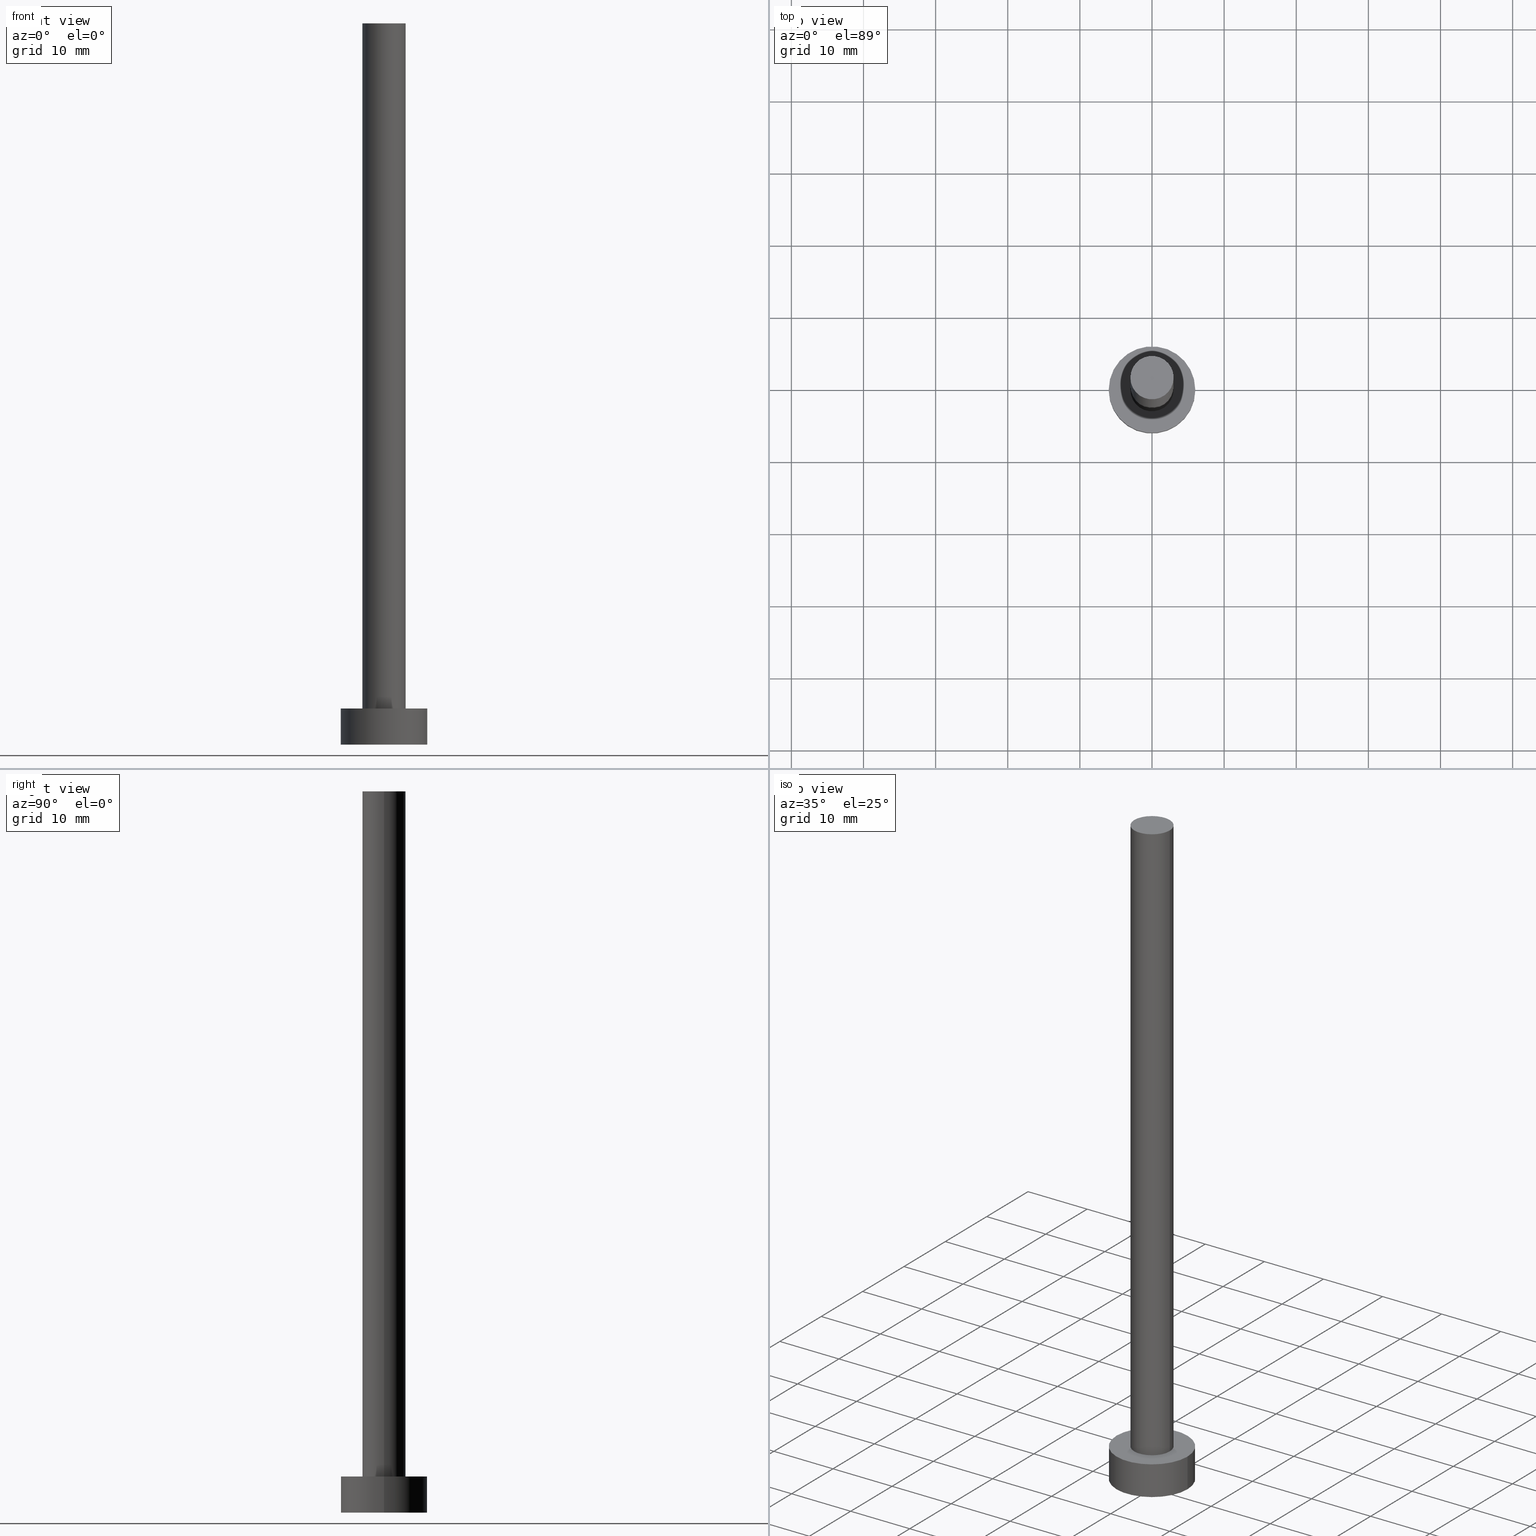
[diagram: canonical four-view strip — front | top / right | iso, engineering-drawing reading convention]
A machine part, canonical four-view strip (front | top / right | iso — engineering-drawing reading convention). The complete STEP part file that produces these views, byte-faithful:
ISO-10303-21;
HEADER;
FILE_DESCRIPTION (( 'STEP AP203' ),
    '1' );
FILE_NAME ('bd63.STEP',
    '2023-02-13T14:08:08',
    ( '' ),
    ( '' ),
    'SwSTEP 2.0',
    'SolidWorks 2019',
    '' );
FILE_SCHEMA (( 'CONFIG_CONTROL_DESIGN' ));
ENDSEC;

DATA;
#1 = APPLICATION_PROTOCOL_DEFINITION ( 'international standard', 'config_control_design', 1994, #52 ) ;
#2 = DIRECTION ( 'NONE',  ( 1.000000000000000000, 0.000000000000000000, 0.000000000000000000 ) ) ;
#3 = CIRCLE ( 'NONE', #38, 6.000000000000000888 ) ;
#4 = LOCAL_TIME ( 15, 8, 8.000000000000000000, #72 ) ;
#5 = DIRECTION ( 'NONE',  ( -0.000000000000000000, -0.000000000000000000, -1.000000000000000000 ) ) ;
#6 = APPROVAL_STATUS ( 'not_yet_approved' ) ;
#7 = DIRECTION ( 'NONE',  ( 1.000000000000000000, 0.000000000000000000, -0.000000000000000000 ) ) ;
#8 = ORIENTED_EDGE ( 'NONE', *, *, #140, .F. ) ;
#9 = LOCAL_TIME ( 15, 8, 8.000000000000000000, #210 ) ;
#10 = CALENDAR_DATE ( 2023, 13, 2 ) ;
#11 = CARTESIAN_POINT ( 'NONE',  ( 0.000000000000000000, 0.000000000000000000, 5.000000000000000000 ) ) ;
#12 = EDGE_LOOP ( 'NONE', ( #178, #18 ) ) ;
#13 = PERSON_AND_ORGANIZATION ( #130, #146 ) ;
#14 = ORIENTED_EDGE ( 'NONE', *, *, #104, .F. ) ;
#15 = ADVANCED_FACE ( 'NONE', ( #150, #46 ), #61, .T. ) ;
#16 = LOCAL_TIME ( 15, 8, 8.000000000000000000, #89 ) ;
#17 = CARTESIAN_POINT ( 'NONE',  ( -3.000000000000000444, 0.000000000000000000, 100.0000000000000000 ) ) ;
#18 = ORIENTED_EDGE ( 'NONE', *, *, #60, .F. ) ;
#19 = APPROVAL_DATE_TIME ( #254, #177 ) ;
#20 = CIRCLE ( 'NONE', #80, 6.000000000000000888 ) ;
#21 = EDGE_CURVE ( 'NONE', #166, #163, #65, .T. ) ;
#22 = ORIENTED_EDGE ( 'NONE', *, *, #176, .T. ) ;
#23 = DIRECTION ( 'NONE',  ( 1.000000000000000000, 0.000000000000000000, 0.000000000000000000 ) ) ;
#24 = DIRECTION ( 'NONE',  ( 0.000000000000000000, 0.000000000000000000, 1.000000000000000000 ) ) ;
#25 = APPROVAL ( #79, 'NEUR�EN�' ) ;
#26 = CARTESIAN_POINT ( 'NONE',  ( 0.000000000000000000, 0.000000000000000000, 100.0000000000000000 ) ) ;
#27 = FACE_OUTER_BOUND ( 'NONE', #242, .T. ) ;
#28 = CALENDAR_DATE ( 2023, 13, 2 ) ;
#29 = DIRECTION ( 'NONE',  ( 0.000000000000000000, 0.000000000000000000, 1.000000000000000000 ) ) ;
#30 = CARTESIAN_POINT ( 'NONE',  ( 0.000000000000000000, 0.000000000000000000, 100.0000000000000000 ) ) ;
#31 = AXIS2_PLACEMENT_3D ( 'NONE', #186, #135, #105 ) ;
#32 = ADVANCED_FACE ( 'NONE', ( #27 ), #63, .T. ) ;
#33 = APPROVAL_DATE_TIME ( #226, #25 ) ;
#34 = DIRECTION ( 'NONE',  ( -1.000000000000000000, 0.000000000000000000, 0.000000000000000000 ) ) ;
#35 = ORIENTED_EDGE ( 'NONE', *, *, #221, .T. ) ;
#36 = LINE ( 'NONE', #231, #243 ) ;
#37 = ORIENTED_EDGE ( 'NONE', *, *, #136, .T. ) ;
#38 = AXIS2_PLACEMENT_3D ( 'NONE', #227, #139, #85 ) ;
#39 = CC_DESIGN_APPROVAL ( #177, ( #249 ) ) ;
#40 = ADVANCED_BREP_SHAPE_REPRESENTATION ( 'bd63', ( #116, #171 ), #45 ) ;
#41 = ORIENTED_EDGE ( 'NONE', *, *, #218, .F. ) ;
#42 = SECURITY_CLASSIFICATION_LEVEL ( 'unclassified' ) ;
#43 = CC_DESIGN_PERSON_AND_ORGANIZATION_ASSIGNMENT ( #160, #125, ( #207 ) ) ;
#44 = ORIENTED_EDGE ( 'NONE', *, *, #203, .T. ) ;
#45 =( GEOMETRIC_REPRESENTATION_CONTEXT ( 3 ) GLOBAL_UNCERTAINTY_ASSIGNED_CONTEXT ( ( #71 ) ) GLOBAL_UNIT_ASSIGNED_CONTEXT ( ( #213, #121, #233 ) ) REPRESENTATION_CONTEXT ( 'NONE', 'WORKASPACE' ) );
#46 = FACE_OUTER_BOUND ( 'NONE', #238, .T. ) ;
#47 = CARTESIAN_POINT ( 'NONE',  ( 0.000000000000000000, 0.000000000000000000, 0.000000000000000000 ) ) ;
#48 = CARTESIAN_POINT ( 'NONE',  ( 6.000000000000000888, 7.347880794884120722E-16, 5.000000000000000000 ) ) ;
#49 = CARTESIAN_POINT ( 'NONE',  ( 3.000000000000000444, 3.673940397442060361E-16, 100.0000000000000000 ) ) ;
#50 = CIRCLE ( 'NONE', #144, 6.000000000000000888 ) ;
#51 = DIRECTION ( 'NONE',  ( 1.000000000000000000, 0.000000000000000000, 0.000000000000000000 ) ) ;
#52 = APPLICATION_CONTEXT ( 'configuration controlled 3d designs of mechanical parts and assemblies' ) ;
#53 = DIRECTION ( 'NONE',  ( -0.000000000000000000, -0.000000000000000000, -1.000000000000000000 ) ) ;
#54 = CARTESIAN_POINT ( 'NONE',  ( 0.000000000000000000, 0.000000000000000000, 0.000000000000000000 ) ) ;
#55 = COORDINATED_UNIVERSAL_TIME_OFFSET ( 1, 0, .AHEAD. ) ;
#56 = VERTEX_POINT ( 'NONE', #113 ) ;
#57 = CC_DESIGN_PERSON_AND_ORGANIZATION_ASSIGNMENT ( #199, #175, ( #249 ) ) ;
#58 = AXIS2_PLACEMENT_3D ( 'NONE', #102, #53, #34 ) ;
#59 = VERTEX_POINT ( 'NONE', #222 ) ;
#60 = EDGE_CURVE ( 'NONE', #56, #198, #50, .T. ) ;
#61 = PLANE ( 'NONE',  #169 ) ;
#62 = APPROVAL_ROLE ( '' ) ;
#63 = CYLINDRICAL_SURFACE ( 'NONE', #149, 6.000000000000000888 ) ;
#64 = CARTESIAN_POINT ( 'NONE',  ( 0.000000000000000000, 0.000000000000000000, 100.0000000000000000 ) ) ;
#65 = CIRCLE ( 'NONE', #235, 3.000000000000000444 ) ;
#66 = DIRECTION ( 'NONE',  ( -0.000000000000000000, -0.000000000000000000, -1.000000000000000000 ) ) ;
#67 = CIRCLE ( 'NONE', #97, 6.000000000000000888 ) ;
#68 = DIRECTION ( 'NONE',  ( 1.000000000000000000, 0.000000000000000000, 0.000000000000000000 ) ) ;
#69 = CYLINDRICAL_SURFACE ( 'NONE', #220, 6.000000000000000888 ) ;
#70 = ORIENTED_EDGE ( 'NONE', *, *, #21, .T. ) ;
#71 = UNCERTAINTY_MEASURE_WITH_UNIT (LENGTH_MEASURE( 1.000000000000000082E-05 ), #213, 'distance_accuracy_value', 'NONE');
#72 = COORDINATED_UNIVERSAL_TIME_OFFSET ( 1, 0, .AHEAD. ) ;
#73 = VECTOR ( 'NONE', #5, 1000.000000000000000 ) ;
#74 = ORIENTED_EDGE ( 'NONE', *, *, #60, .T. ) ;
#75 = ADVANCED_FACE ( 'NONE', ( #179 ), #206, .T. ) ;
#76 = EDGE_LOOP ( 'NONE', ( #14, #8, #239, #44 ) ) ;
#77 = ORIENTED_EDGE ( 'NONE', *, *, #176, .F. ) ;
#78 = AXIS2_PLACEMENT_3D ( 'NONE', #127, #24, #2 ) ;
#79 = APPROVAL_STATUS ( 'not_yet_approved' ) ;
#80 = AXIS2_PLACEMENT_3D ( 'NONE', #118, #192, #212 ) ;
#81 = VERTEX_POINT ( 'NONE', #204 ) ;
#82 = PERSON_AND_ORGANIZATION ( #130, #146 ) ;
#83 = LINE ( 'NONE', #155, #228 ) ;
#84 = APPROVAL_ROLE ( '' ) ;
#85 = DIRECTION ( 'NONE',  ( 1.000000000000000000, 0.000000000000000000, 0.000000000000000000 ) ) ;
#86 = VERTEX_POINT ( 'NONE', #241 ) ;
#87 = DATE_AND_TIME ( #10, #16 ) ;
#88 = CARTESIAN_POINT ( 'NONE',  ( -6.000000000000000888, 0.000000000000000000, 0.000000000000000000 ) ) ;
#89 = COORDINATED_UNIVERSAL_TIME_OFFSET ( 1, 0, .AHEAD. ) ;
#90 = EDGE_LOOP ( 'NONE', ( #187, #41 ) ) ;
#91 = CARTESIAN_POINT ( 'NONE',  ( 0.000000000000000000, 0.000000000000000000, 5.000000000000000000 ) ) ;
#92 = ORIENTED_EDGE ( 'NONE', *, *, #136, .F. ) ;
#93 = APPLICATION_PROTOCOL_DEFINITION ( 'international standard', 'config_control_design', 1994, #94 ) ;
#94 = APPLICATION_CONTEXT ( 'configuration controlled 3d designs of mechanical parts and assemblies' ) ;
#95 = AXIS2_PLACEMENT_3D ( 'NONE', #91, #142, #191 ) ;
#96 = EDGE_CURVE ( 'NONE', #103, #86, #182, .T. ) ;
#97 = AXIS2_PLACEMENT_3D ( 'NONE', #123, #156, #68 ) ;
#98 = APPROVAL_PERSON_ORGANIZATION ( #13, #100, #84 ) ;
#99 = CARTESIAN_POINT ( 'NONE',  ( -3.000000000000000444, 0.000000000000000000, 5.000000000000000000 ) ) ;
#100 = APPROVAL ( #6, 'NEUR�EN�' ) ;
#101 = PLANE ( 'NONE',  #31 ) ;
#102 = CARTESIAN_POINT ( 'NONE',  ( 0.000000000000000000, 0.000000000000000000, 100.0000000000000000 ) ) ;
#103 = VERTEX_POINT ( 'NONE', #99 ) ;
#104 = EDGE_CURVE ( 'NONE', #59, #56, #132, .T. ) ;
#105 = DIRECTION ( 'NONE',  ( 1.000000000000000000, 0.000000000000000000, -0.000000000000000000 ) ) ;
#106 = DIRECTION ( 'NONE',  ( -0.000000000000000000, -0.000000000000000000, -1.000000000000000000 ) ) ;
#107 = LOCAL_TIME ( 15, 8, 8.000000000000000000, #151 ) ;
#108 = ORIENTED_EDGE ( 'NONE', *, *, #111, .T. ) ;
#109 = PERSON_AND_ORGANIZATION ( #130, #146 ) ;
#110 = EDGE_LOOP ( 'NONE', ( #77, #35, #252, #185 ) ) ;
#111 = EDGE_CURVE ( 'NONE', #166, #103, #83, .T. ) ;
#112 = DIRECTION ( 'NONE',  ( -0.000000000000000000, -0.000000000000000000, -1.000000000000000000 ) ) ;
#113 = CARTESIAN_POINT ( 'NONE',  ( 6.000000000000000888, 7.347880794884120722E-16, 0.000000000000000000 ) ) ;
#114 = CC_DESIGN_PERSON_AND_ORGANIZATION_ASSIGNMENT ( #124, #170, ( #207 ) ) ;
#115 = DIRECTION ( 'NONE',  ( 0.000000000000000000, 0.000000000000000000, 1.000000000000000000 ) ) ;
#116 = MANIFOLD_SOLID_BREP ( 'P�idat vysunut�m3', #255 ) ;
#117 = LINE ( 'NONE', #211, #193 ) ;
#118 = CARTESIAN_POINT ( 'NONE',  ( 0.000000000000000000, 0.000000000000000000, 0.000000000000000000 ) ) ;
#119 = CIRCLE ( 'NONE', #128, 3.000000000000000444 ) ;
#120 = ADVANCED_FACE ( 'NONE', ( #184 ), #158, .F. ) ;
#121 =( NAMED_UNIT ( * ) PLANE_ANGLE_UNIT ( ) SI_UNIT ( $, .RADIAN. ) );
#122 = CALENDAR_DATE ( 2023, 13, 2 ) ;
#123 = CARTESIAN_POINT ( 'NONE',  ( 0.000000000000000000, 0.000000000000000000, 5.000000000000000000 ) ) ;
#124 = PERSON_AND_ORGANIZATION ( #130, #146 ) ;
#125 = PERSON_AND_ORGANIZATION_ROLE ( 'creator' ) ;
#126 = ORIENTED_EDGE ( 'NONE', *, *, #104, .T. ) ;
#127 = CARTESIAN_POINT ( 'NONE',  ( 0.000000000000000000, 0.000000000000000000, 5.000000000000000000 ) ) ;
#128 = AXIS2_PLACEMENT_3D ( 'NONE', #30, #248, #51 ) ;
#129 = DIRECTION ( 'NONE',  ( -0.000000000000000000, -0.000000000000000000, -1.000000000000000000 ) ) ;
#130 = PERSON ( 'NEUR�EN�', 'NEUR�EN�', 'NEUR�EN�', ('NEUR�EN�'), ('NEUR�EN�'), ('NEUR�EN�') ) ;
#131 = DIRECTION ( 'NONE',  ( 1.000000000000000000, 0.000000000000000000, 0.000000000000000000 ) ) ;
#132 = LINE ( 'NONE', #48, #73 ) ;
#133 = CC_DESIGN_APPROVAL ( #100, ( #207 ) ) ;
#134 = FACE_OUTER_BOUND ( 'NONE', #76, .T. ) ;
#135 = DIRECTION ( 'NONE',  ( 0.000000000000000000, 0.000000000000000000, 1.000000000000000000 ) ) ;
#136 = EDGE_CURVE ( 'NONE', #59, #81, #3, .T. ) ;
#137 = DIRECTION ( 'NONE',  ( -0.000000000000000000, -0.000000000000000000, -1.000000000000000000 ) ) ;
#138 = ORIENTED_EDGE ( 'NONE', *, *, #221, .F. ) ;
#139 = DIRECTION ( 'NONE',  ( 0.000000000000000000, 0.000000000000000000, 1.000000000000000000 ) ) ;
#140 = EDGE_CURVE ( 'NONE', #81, #59, #67, .T. ) ;
#141 = CC_DESIGN_SECURITY_CLASSIFICATION ( #249, ( #207 ) ) ;
#142 = DIRECTION ( 'NONE',  ( 0.000000000000000000, 0.000000000000000000, 1.000000000000000000 ) ) ;
#143 = PRODUCT_DEFINITION_SHAPE ( 'NONE', 'NONE',  #208 ) ;
#144 = AXIS2_PLACEMENT_3D ( 'NONE', #47, #115, #23 ) ;
#145 = DIRECTION ( 'NONE',  ( 1.000000000000000000, 0.000000000000000000, 0.000000000000000000 ) ) ;
#146 = ORGANIZATION ( 'NEUR�EN�', 'NEUR�EN�', '' ) ;
#147 = ADVANCED_FACE ( 'NONE', ( #247 ), #101, .T. ) ;
#148 = CARTESIAN_POINT ( 'NONE',  ( 0.000000000000000000, 0.000000000000000000, 5.000000000000000000 ) ) ;
#149 = AXIS2_PLACEMENT_3D ( 'NONE', #245, #66, #205 ) ;
#150 = FACE_BOUND ( 'NONE', #90, .T. ) ;
#151 = COORDINATED_UNIVERSAL_TIME_OFFSET ( 1, 0, .AHEAD. ) ;
#152 = DIRECTION ( 'NONE',  ( 0.000000000000000000, 0.000000000000000000, 1.000000000000000000 ) ) ;
#153 = ORIENTED_EDGE ( 'NONE', *, *, #167, .F. ) ;
#154 = PERSON_AND_ORGANIZATION_ROLE ( 'creator' ) ;
#155 = CARTESIAN_POINT ( 'NONE',  ( -3.000000000000000444, 0.000000000000000000, 100.0000000000000000 ) ) ;
#156 = DIRECTION ( 'NONE',  ( 0.000000000000000000, 0.000000000000000000, 1.000000000000000000 ) ) ;
#157 = APPROVAL_DATE_TIME ( #87, #100 ) ;
#158 = PLANE ( 'NONE',  #219 ) ;
#159 = ORIENTED_EDGE ( 'NONE', *, *, #96, .T. ) ;
#160 = PERSON_AND_ORGANIZATION ( #130, #146 ) ;
#161 = CC_DESIGN_DATE_AND_TIME_ASSIGNMENT ( #183, #190, ( #208 ) ) ;
#162 = CYLINDRICAL_SURFACE ( 'NONE', #58, 3.000000000000000444 ) ;
#163 = VERTEX_POINT ( 'NONE', #49 ) ;
#164 = APPROVAL_PERSON_ORGANIZATION ( #224, #25, #62 ) ;
#165 = FACE_OUTER_BOUND ( 'NONE', #110, .T. ) ;
#166 = VERTEX_POINT ( 'NONE', #17 ) ;
#167 = EDGE_CURVE ( 'NONE', #81, #198, #117, .T. ) ;
#168 = PERSON_AND_ORGANIZATION ( #130, #146 ) ;
#169 = AXIS2_PLACEMENT_3D ( 'NONE', #148, #181, #225 ) ;
#170 = PERSON_AND_ORGANIZATION_ROLE ( 'design_supplier' ) ;
#171 = AXIS2_PLACEMENT_3D ( 'NONE', #173, #217, #145 ) ;
#172 = DATE_TIME_ROLE ( 'classification_date' ) ;
#173 = CARTESIAN_POINT ( 'NONE',  ( 0.000000000000000000, 0.000000000000000000, 0.000000000000000000 ) ) ;
#174 = EDGE_LOOP ( 'NONE', ( #70, #22 ) ) ;
#175 = PERSON_AND_ORGANIZATION_ROLE ( 'classification_officer' ) ;
#176 = EDGE_CURVE ( 'NONE', #163, #166, #119, .T. ) ;
#177 = APPROVAL ( #251, 'NEUR�EN�' ) ;
#178 = ORIENTED_EDGE ( 'NONE', *, *, #203, .F. ) ;
#179 = FACE_OUTER_BOUND ( 'NONE', #189, .T. ) ;
#180 = ORIENTED_EDGE ( 'NONE', *, *, #140, .T. ) ;
#181 = DIRECTION ( 'NONE',  ( 0.000000000000000000, 0.000000000000000000, 1.000000000000000000 ) ) ;
#182 = CIRCLE ( 'NONE', #78, 3.000000000000000444 ) ;
#183 = DATE_AND_TIME ( #28, #9 ) ;
#184 = FACE_OUTER_BOUND ( 'NONE', #12, .T. ) ;
#185 = ORIENTED_EDGE ( 'NONE', *, *, #111, .F. ) ;
#186 = CARTESIAN_POINT ( 'NONE',  ( 0.000000000000000000, 0.000000000000000000, 100.0000000000000000 ) ) ;
#187 = ORIENTED_EDGE ( 'NONE', *, *, #96, .F. ) ;
#188 = ADVANCED_FACE ( 'NONE', ( #134 ), #69, .T. ) ;
#189 = EDGE_LOOP ( 'NONE', ( #138, #215, #108, #159 ) ) ;
#190 = DATE_TIME_ROLE ( 'creation_date' ) ;
#191 = DIRECTION ( 'NONE',  ( 1.000000000000000000, 0.000000000000000000, 0.000000000000000000 ) ) ;
#192 = DIRECTION ( 'NONE',  ( 0.000000000000000000, 0.000000000000000000, 1.000000000000000000 ) ) ;
#193 = VECTOR ( 'NONE', #137, 1000.000000000000000 ) ;
#194 = PRODUCT ( 'bd63', 'bd63', '', ( #196 ) ) ;
#195 = DESIGN_CONTEXT ( 'detailed design', #52, 'design' ) ;
#196 = MECHANICAL_CONTEXT ( 'NONE', #94, 'mechanical' ) ;
#197 = AXIS2_PLACEMENT_3D ( 'NONE', #26, #129, #209 ) ;
#198 = VERTEX_POINT ( 'NONE', #88 ) ;
#199 = PERSON_AND_ORGANIZATION ( #130, #146 ) ;
#200 = PERSON_AND_ORGANIZATION_ROLE ( 'design_owner' ) ;
#201 = APPROVAL_PERSON_ORGANIZATION ( #168, #177, #202 ) ;
#202 = APPROVAL_ROLE ( '' ) ;
#203 = EDGE_CURVE ( 'NONE', #198, #56, #20, .T. ) ;
#204 = CARTESIAN_POINT ( 'NONE',  ( -6.000000000000000888, 0.000000000000000000, 5.000000000000000000 ) ) ;
#205 = DIRECTION ( 'NONE',  ( -1.000000000000000000, 0.000000000000000000, 0.000000000000000000 ) ) ;
#206 = CYLINDRICAL_SURFACE ( 'NONE', #197, 3.000000000000000444 ) ;
#207 = PRODUCT_DEFINITION_FORMATION_WITH_SPECIFIED_SOURCE ( 'LIBOVOLN�', '', #194, .NOT_KNOWN. ) ;
#208 = PRODUCT_DEFINITION ( 'NEZN�M�', '', #207, #195 ) ;
#209 = DIRECTION ( 'NONE',  ( -1.000000000000000000, 0.000000000000000000, 0.000000000000000000 ) ) ;
#210 = COORDINATED_UNIVERSAL_TIME_OFFSET ( 1, 0, .AHEAD. ) ;
#211 = CARTESIAN_POINT ( 'NONE',  ( -6.000000000000000888, 0.000000000000000000, 5.000000000000000000 ) ) ;
#212 = DIRECTION ( 'NONE',  ( 1.000000000000000000, 0.000000000000000000, 0.000000000000000000 ) ) ;
#213 =( LENGTH_UNIT ( ) NAMED_UNIT ( * ) SI_UNIT ( .MILLI., .METRE. ) );
#214 = DIRECTION ( 'NONE',  ( -0.000000000000000000, -0.000000000000000000, -1.000000000000000000 ) ) ;
#215 = ORIENTED_EDGE ( 'NONE', *, *, #21, .F. ) ;
#216 = CALENDAR_DATE ( 2023, 13, 2 ) ;
#217 = DIRECTION ( 'NONE',  ( 0.000000000000000000, 0.000000000000000000, 1.000000000000000000 ) ) ;
#218 = EDGE_CURVE ( 'NONE', #86, #103, #253, .T. ) ;
#219 = AXIS2_PLACEMENT_3D ( 'NONE', #54, #29, #7 ) ;
#220 = AXIS2_PLACEMENT_3D ( 'NONE', #11, #214, #229 ) ;
#221 = EDGE_CURVE ( 'NONE', #163, #86, #36, .T. ) ;
#222 = CARTESIAN_POINT ( 'NONE',  ( 6.000000000000000888, 7.347880794884120722E-16, 5.000000000000000000 ) ) ;
#223 = CC_DESIGN_PERSON_AND_ORGANIZATION_ASSIGNMENT ( #82, #154, ( #208 ) ) ;
#224 = PERSON_AND_ORGANIZATION ( #130, #146 ) ;
#225 = DIRECTION ( 'NONE',  ( 1.000000000000000000, 0.000000000000000000, -0.000000000000000000 ) ) ;
#226 = DATE_AND_TIME ( #122, #107 ) ;
#227 = CARTESIAN_POINT ( 'NONE',  ( 0.000000000000000000, 0.000000000000000000, 5.000000000000000000 ) ) ;
#228 = VECTOR ( 'NONE', #112, 1000.000000000000000 ) ;
#229 = DIRECTION ( 'NONE',  ( -1.000000000000000000, 0.000000000000000000, 0.000000000000000000 ) ) ;
#230 = CC_DESIGN_APPROVAL ( #25, ( #208 ) ) ;
#231 = CARTESIAN_POINT ( 'NONE',  ( 3.000000000000000444, 3.673940397442060361E-16, 100.0000000000000000 ) ) ;
#232 = ADVANCED_FACE ( 'NONE', ( #165 ), #162, .T. ) ;
#233 =( NAMED_UNIT ( * ) SI_UNIT ( $, .STERADIAN. ) SOLID_ANGLE_UNIT ( ) );
#234 = CC_DESIGN_DATE_AND_TIME_ASSIGNMENT ( #240, #172, ( #249 ) ) ;
#235 = AXIS2_PLACEMENT_3D ( 'NONE', #64, #152, #131 ) ;
#236 = CALENDAR_DATE ( 2023, 13, 2 ) ;
#237 = SHAPE_DEFINITION_REPRESENTATION ( #143, #40 ) ;
#238 = EDGE_LOOP ( 'NONE', ( #180, #37 ) ) ;
#239 = ORIENTED_EDGE ( 'NONE', *, *, #167, .T. ) ;
#240 = DATE_AND_TIME ( #236, #246 ) ;
#241 = CARTESIAN_POINT ( 'NONE',  ( 3.000000000000000444, 3.673940397442060361E-16, 5.000000000000000000 ) ) ;
#242 = EDGE_LOOP ( 'NONE', ( #92, #126, #74, #153 ) ) ;
#243 = VECTOR ( 'NONE', #106, 1000.000000000000000 ) ;
#244 = CC_DESIGN_PERSON_AND_ORGANIZATION_ASSIGNMENT ( #109, #200, ( #194 ) ) ;
#245 = CARTESIAN_POINT ( 'NONE',  ( 0.000000000000000000, 0.000000000000000000, 5.000000000000000000 ) ) ;
#246 = LOCAL_TIME ( 15, 8, 8.000000000000000000, #55 ) ;
#247 = FACE_OUTER_BOUND ( 'NONE', #174, .T. ) ;
#248 = DIRECTION ( 'NONE',  ( 0.000000000000000000, 0.000000000000000000, 1.000000000000000000 ) ) ;
#249 = SECURITY_CLASSIFICATION ( '', '', #42 ) ;
#250 = PRODUCT_RELATED_PRODUCT_CATEGORY ( 'detail', '', ( #194 ) ) ;
#251 = APPROVAL_STATUS ( 'not_yet_approved' ) ;
#252 = ORIENTED_EDGE ( 'NONE', *, *, #218, .T. ) ;
#253 = CIRCLE ( 'NONE', #95, 3.000000000000000444 ) ;
#254 = DATE_AND_TIME ( #216, #4 ) ;
#255 = CLOSED_SHELL ( 'NONE', ( #232, #32, #188, #15, #120, #75, #147 ) ) ;
ENDSEC;
END-ISO-10303-21;
